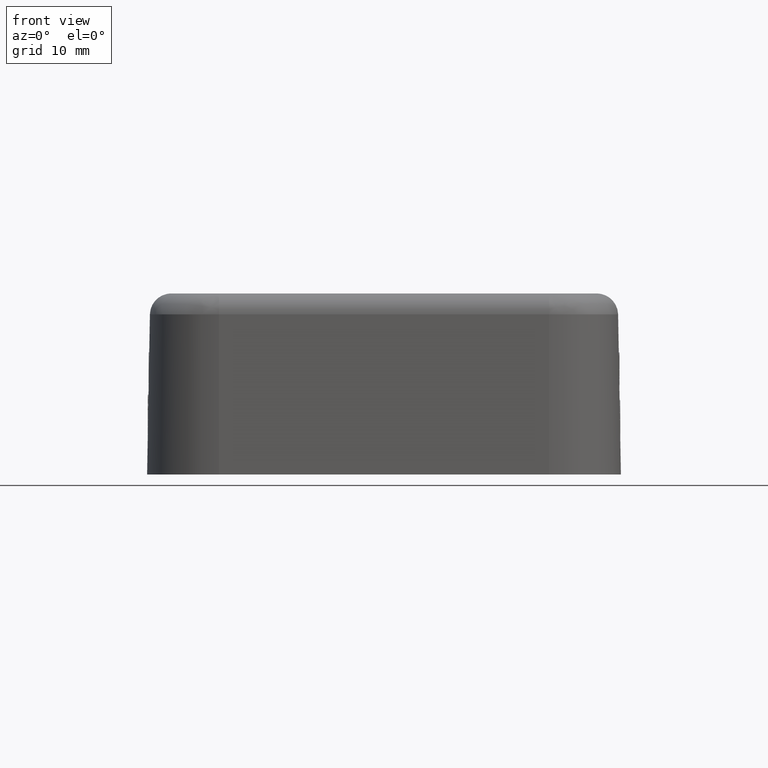
[diagram: clean part render]
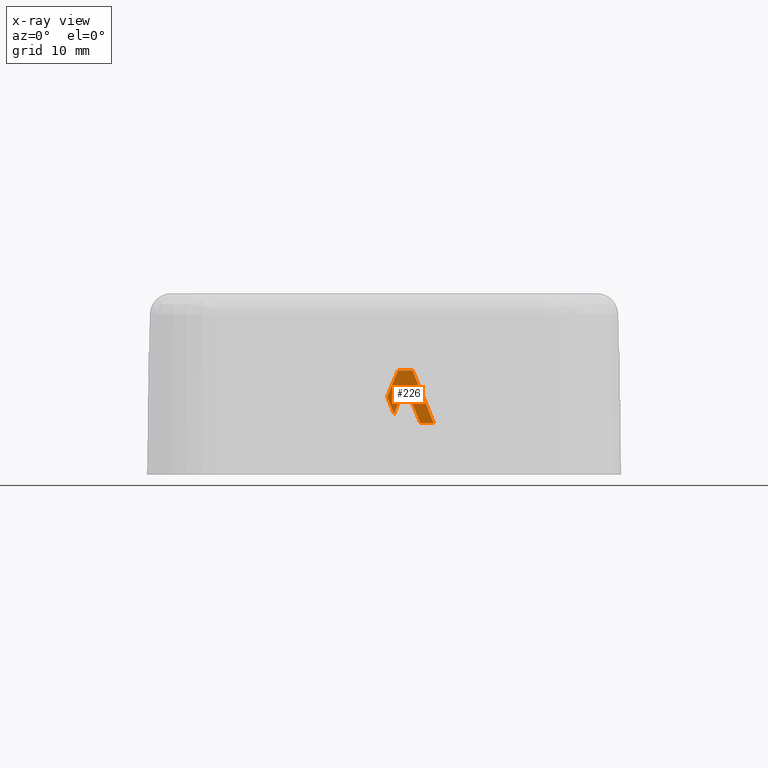
[diagram: x-ray — body ghosted, one internal face saturated and labeled with its STEP entity id]
A machine part, front view, then the same camera in x-ray: the body is ghosted and one INTERNAL B-rep face — a face not visible from any outside direction — is saturated and labeled: STEP entity #226.
In plain terms, the highlighted face is a freeform B-spline surface patch.
Its self-contained STEP definition (entity closure, byte-faithful):
#226=ADVANCED_FACE('',(#502),#503,.T.);
#502=FACE_OUTER_BOUND('',#1346,.T.);
#503=B_SPLINE_SURFACE_WITH_KNOTS('',1,1,((#1347,#1348),(#1349,#1350)),.UNSPECIFIED.,.F.,.F.,.F.,(2,2),(2,2),(0.0,1.0),(0.0,1.0),.UNSPECIFIED.);
#1346=EDGE_LOOP('',(#3336,#3337,#3338,#3339,#3340,#3341,#3342));
#1347=CARTESIAN_POINT('',(0.2957047139968,4.0765137923283,9.77880478694826));
#1348=CARTESIAN_POINT('',(4.66863420936479,4.0765137923283,9.77880478694826));
#1349=CARTESIAN_POINT('',(0.2957047139968,4.16277043290483,4.83716515792076));
#1350=CARTESIAN_POINT('',(4.66863420936479,4.16277043290483,4.83716515792076));
#3336=ORIENTED_EDGE('',*,*,#4092,.T.);
#3337=ORIENTED_EDGE('',*,*,#4083,.T.);
#3338=ORIENTED_EDGE('',*,*,#4086,.T.);
#3339=ORIENTED_EDGE('',*,*,#4091,.T.);
#3340=ORIENTED_EDGE('',*,*,#4089,.T.);
#3341=ORIENTED_EDGE('',*,*,#4093,.F.);
#3342=ORIENTED_EDGE('',*,*,#4079,.T.);
#4079=EDGE_CURVE('',#4681,#4683,#4685,.T.);
#4083=EDGE_CURVE('',#4687,#4691,#4693,.T.);
#4086=EDGE_CURVE('',#4691,#4696,#4698,.T.);
#4089=EDGE_CURVE('',#4700,#4702,#4704,.T.);
#4091=EDGE_CURVE('',#4696,#4700,#4706,.T.);
#4092=EDGE_CURVE('',#4683,#4687,#4707,.T.);
#4093=EDGE_CURVE('',#4681,#4702,#4708,.T.);
#4681=VERTEX_POINT('',#6296);
#4683=VERTEX_POINT('',#6301);
#4685=B_SPLINE_CURVE_WITH_KNOTS('',3,(#6304,#6305,#6306,#6307),.UNSPECIFIED.,.F.,.F.,(4,4),(0.0,1.0),.UNSPECIFIED.);
#4687=VERTEX_POINT('',#6309);
#4691=VERTEX_POINT('',#6317);
#4693=B_SPLINE_CURVE_WITH_KNOTS('',3,(#6320,#6321,#6322,#6323),.UNSPECIFIED.,.F.,.F.,(4,4),(0.0,1.0),.UNSPECIFIED.);
#4696=VERTEX_POINT('',#6329);
#4698=B_SPLINE_CURVE_WITH_KNOTS('',3,(#6332,#6333,#6334,#6335),.UNSPECIFIED.,.F.,.F.,(4,4),(0.0,1.0),.UNSPECIFIED.);
#4700=VERTEX_POINT('',#6337);
#4702=VERTEX_POINT('',#6340);
#4704=B_SPLINE_CURVE_WITH_KNOTS('',3,(#6345,#6346,#6347,#6348),.UNSPECIFIED.,.F.,.F.,(4,4),(0.0,1.0),.UNSPECIFIED.);
#4706=B_SPLINE_CURVE_WITH_KNOTS('',3,(#6353,#6354,#6355,#6356),.UNSPECIFIED.,.F.,.F.,(4,4),(0.0,1.0),.UNSPECIFIED.);
#4707=B_SPLINE_CURVE_WITH_KNOTS('',1,(#6357,#6358),.UNSPECIFIED.,.F.,.F.,(2,2),(0.0,1.0),.UNSPECIFIED.);
#4708=B_SPLINE_CURVE_WITH_KNOTS('',1,(#6359,#6360),.UNSPECIFIED.,.F.,.F.,(2,2),(0.0,1.0),.UNSPECIFIED.);
#6296=CARTESIAN_POINT('',(4.66863420936485,4.16277043290482,4.83716515792073));
#6301=CARTESIAN_POINT('',(2.68172727499688,4.07651379232829,9.77880478694819));
#6304=CARTESIAN_POINT('',(4.66863420936479,4.16277043290483,4.83716515792076));
#6305=CARTESIAN_POINT('',(4.00633189790882,4.13401821937932,6.48437836759659));
#6306=CARTESIAN_POINT('',(3.34402958645285,4.10526600585381,8.13159157727243));
#6307=CARTESIAN_POINT('',(2.68172727499688,4.0765137923283,9.77880478694826));
#6309=CARTESIAN_POINT('',(1.31837740668666,4.0765137923284,9.77880478693554));
#6317=CARTESIAN_POINT('',(0.295704713996854,4.12005652225885,7.28424345992802));
#6320=CARTESIAN_POINT('',(1.31837740673295,4.0765137923283,9.77880478694826));
#6321=CARTESIAN_POINT('',(0.977486509154232,4.09102803563849,8.94728434460818));
#6322=CARTESIAN_POINT('',(0.636595611575516,4.10554227894867,8.1157639022681));
#6323=CARTESIAN_POINT('',(0.2957047139968,4.12005652225886,7.28424345992802));
#6329=CARTESIAN_POINT('',(0.938237372496838,4.14808660523758,5.67840108156958));
#6332=CARTESIAN_POINT('',(0.2957047139968,4.12005652225886,7.28424345992802));
#6333=CARTESIAN_POINT('',(0.509882266916519,4.12939988325212,6.74896266712192));
#6334=CARTESIAN_POINT('',(0.724059819836239,4.13874324424538,6.21368187431581));
#6335=CARTESIAN_POINT('',(0.938237372755958,4.14808660523863,5.67840108150971));
#6337=CARTESIAN_POINT('',(2.00005234056957,4.10228311625176,8.30248120808574));
#6340=CARTESIAN_POINT('',(3.39591904255882,4.16277043290482,4.83716515792073));
#6345=CARTESIAN_POINT('',(2.00005234029424,4.10228311625046,8.30248120819714));
#6346=CARTESIAN_POINT('',(2.4653412410491,4.12244555513525,7.14737585810501));
#6347=CARTESIAN_POINT('',(2.93063014180396,4.14260799402004,5.99227050801289));
#6348=CARTESIAN_POINT('',(3.39591904255881,4.16277043290483,4.83716515792076));
#6353=CARTESIAN_POINT('',(0.938237372310216,4.14808660523549,5.67840108169001));
#6354=CARTESIAN_POINT('',(1.29217569515511,4.13281877557511,6.55309445711814));
#6355=CARTESIAN_POINT('',(1.64611401800001,4.11755094591473,7.42778783254626));
#6356=CARTESIAN_POINT('',(2.0000523408449,4.10228311625435,8.30248120797439));
#6357=CARTESIAN_POINT('',(2.68172727499688,4.0765137923283,9.77880478694826));
#6358=CARTESIAN_POINT('',(1.31837740664038,4.0765137923283,9.77880478694826));
#6359=CARTESIAN_POINT('',(4.66863420936488,4.16277043290482,4.83716515792071));
#6360=CARTESIAN_POINT('',(3.39591904255882,4.16277043290482,4.83716515792071));